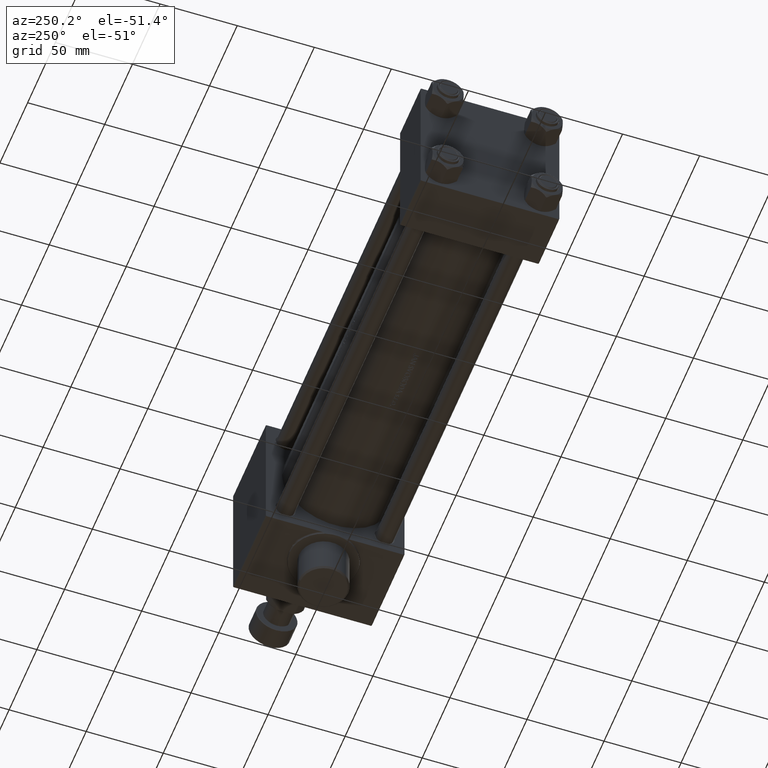
[diagram: clean part render]
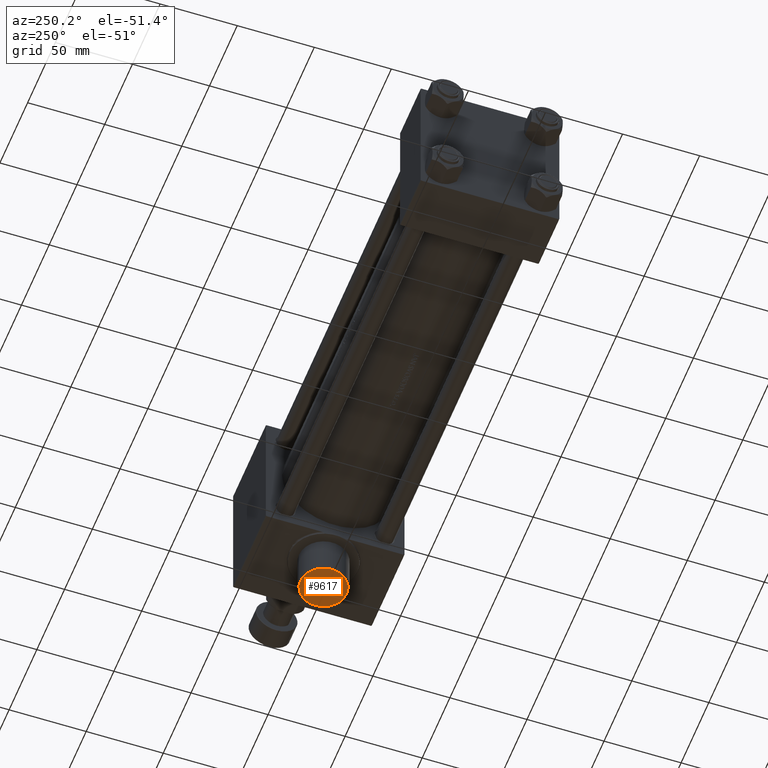
[diagram: same view with one face highlighted and labeled with its STEP entity id]
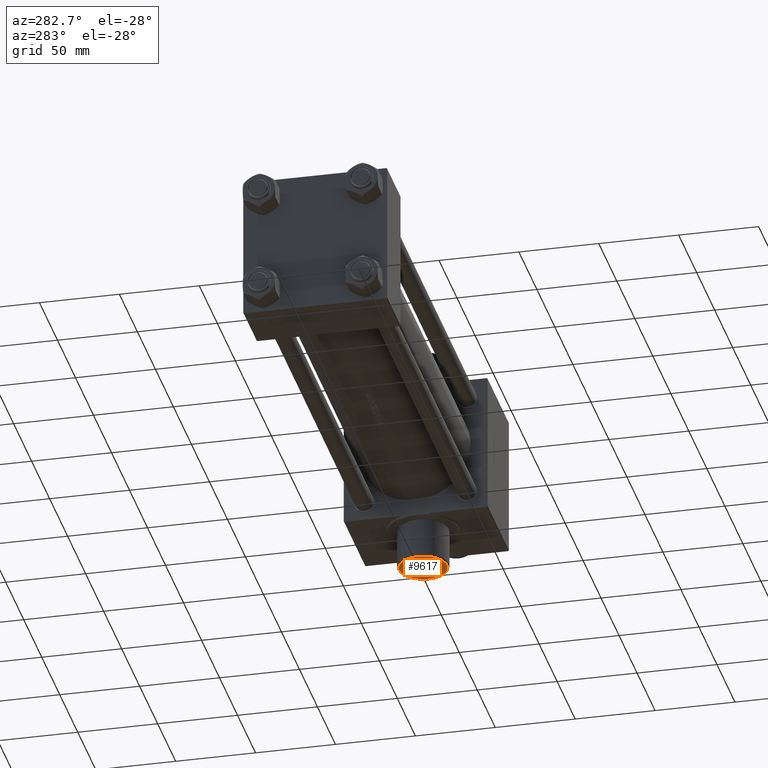
[diagram: same view with one face highlighted and labeled with its STEP entity id]
A machine part, auxiliary view. The second image highlights one B-rep face of the part: STEP entity #9617.
A second angle (auxiliary view) of the same face is appended — the face is thin or edge-on in the first view.
In plain terms, the highlighted planar face has unit normal (0, -0, -1).
Its self-contained STEP definition (entity closure, byte-faithful):
#1609 = DIRECTION ( 'NONE',  ( 0.000000000000000000, 1.000000000000000000, -8.673617379884036705E-17 ) ) ;
#2783 = AXIS2_PLACEMENT_3D ( 'NONE', #22786, #1609, #45369 ) ;
#3105 = CARTESIAN_POINT ( 'NONE',  ( 300.0000000000000000, 70.50000000000000000, 14.99999999999984190 ) ) ;
#7436 = ORIENTED_EDGE ( 'NONE', *, *, #34081, .T. ) ;
#8078 = CIRCLE ( 'NONE', #2783, 14.99999999999984368 ) ;
#8493 = CARTESIAN_POINT ( 'NONE',  ( 300.0000000000000000, 70.50000000000000000, -14.99999999999984546 ) ) ;
#9617 = ADVANCED_FACE ( 'NONE', ( #25063 ), #42674, .T. ) ;
#10259 = EDGE_CURVE ( 'NONE', #37411, #20135, #17973, .T. ) ;
#14063 = ORIENTED_EDGE ( 'NONE', *, *, #10259, .T. ) ;
#16375 = DIRECTION ( 'NONE',  ( 0.000000000000000000, 1.000000000000000000, -8.673617379884036705E-17 ) ) ;
#17973 = CIRCLE ( 'NONE', #42291, 14.99999999999984368 ) ;
#20135 = VERTEX_POINT ( 'NONE', #3105 ) ;
#20645 = CARTESIAN_POINT ( 'NONE',  ( 300.0000000000000000, 70.50000000000000000, -2.255140518769849223E-15 ) ) ;
#21259 = CARTESIAN_POINT ( 'NONE',  ( 300.0000000000000000, 70.50000000000000000, -2.255140518769849223E-15 ) ) ;
#22558 = AXIS2_PLACEMENT_3D ( 'NONE', #21259, #32435, #39590 ) ;
#22786 = CARTESIAN_POINT ( 'NONE',  ( 300.0000000000000000, 70.50000000000000000, -2.255140518769849223E-15 ) ) ;
#23292 = DIRECTION ( 'NONE',  ( 0.000000000000000000, 0.000000000000000000, 1.000000000000000000 ) ) ;
#24107 = EDGE_LOOP ( 'NONE', ( #14063, #7436 ) ) ;
#25063 = FACE_OUTER_BOUND ( 'NONE', #24107, .T. ) ;
#32435 = DIRECTION ( 'NONE',  ( 0.000000000000000000, 1.000000000000000000, -8.673617379884036705E-17 ) ) ;
#34081 = EDGE_CURVE ( 'NONE', #20135, #37411, #8078, .T. ) ;
#37411 = VERTEX_POINT ( 'NONE', #8493 ) ;
#39590 = DIRECTION ( 'NONE',  ( 0.000000000000000000, -8.673617379884036705E-17, -1.000000000000000000 ) ) ;
#42291 = AXIS2_PLACEMENT_3D ( 'NONE', #20645, #16375, #23292 ) ;
#42674 = PLANE ( 'NONE',  #22558 ) ;
#45369 = DIRECTION ( 'NONE',  ( 0.000000000000000000, 0.000000000000000000, 1.000000000000000000 ) ) ;